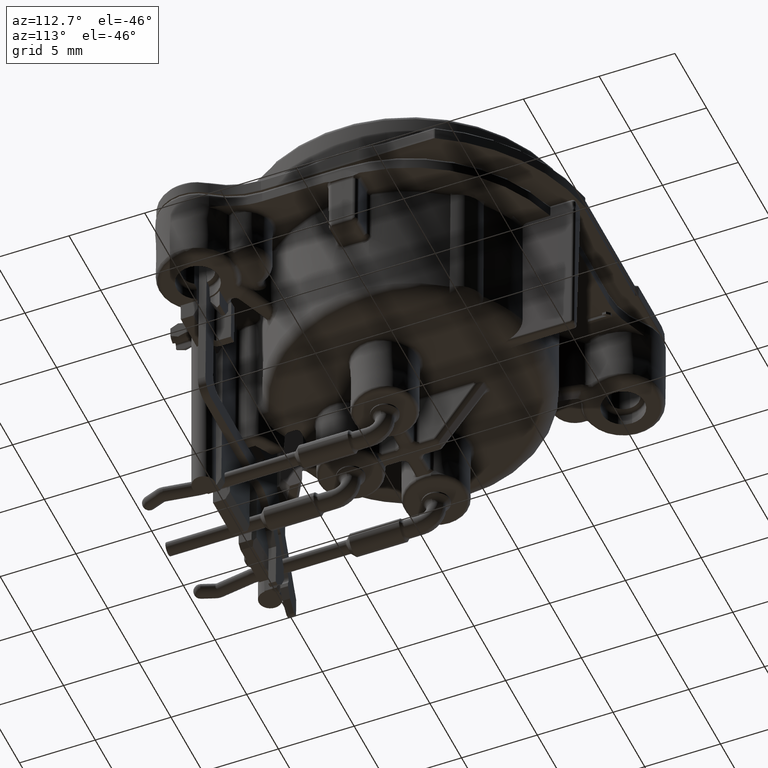
[diagram: clean part render]
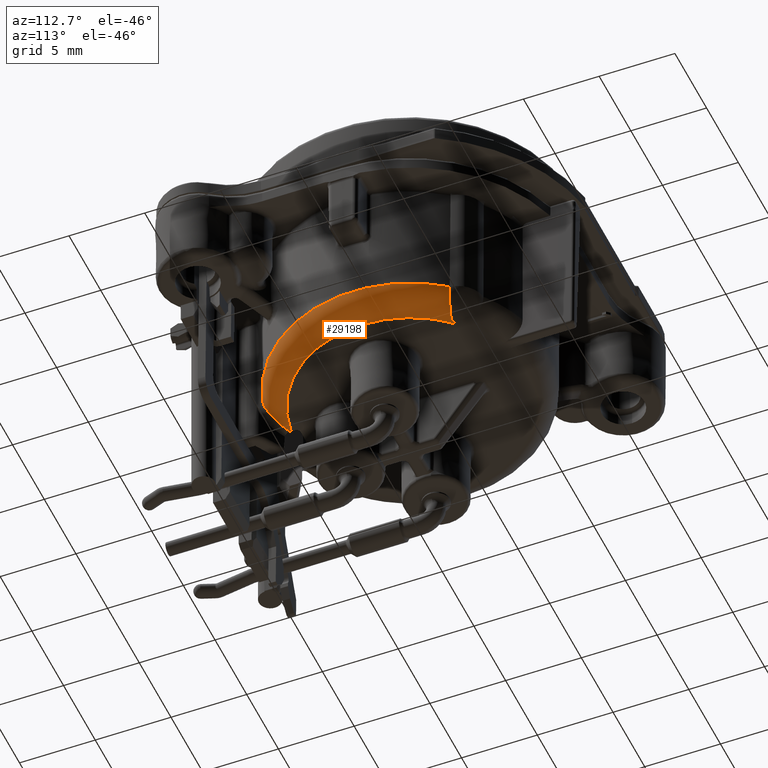
[diagram: same view with one face highlighted and labeled with its STEP entity id]
A machine part, auxiliary view. The second image highlights one B-rep face of the part: STEP entity #29198.
In plain terms, the highlighted toroidal blend (fillet) surface has major radius 7.556 mm and minor (blend) radius 1.5 mm.
Its self-contained STEP definition (entity closure, byte-faithful):
#3745=CARTESIAN_POINT('',(7.141501285638E0,5.56851162E0,-9.218143833828E0));
#4004=CARTESIAN_POINT('',(2.225007864127E0,-8.216354409264E0,
-1.035564866610E1));
#4005=CARTESIAN_POINT('',(2.254239938082E0,-8.230253539194E0,
-1.033822435038E1));
#4006=CARTESIAN_POINT('',(2.311023718709E0,-8.259779058835E0,
-1.030028483236E1));
#4007=CARTESIAN_POINT('',(2.391436029645E0,-8.309378040394E0,
-1.023155835560E1));
#4008=CARTESIAN_POINT('',(2.462830001995E0,-8.361031676076E0,
-1.015282662142E1));
#4009=CARTESIAN_POINT('',(2.523689137921E0,-8.411825482489E0,
-1.006628831984E1));
#4010=CARTESIAN_POINT('',(2.573681899545E0,-8.459218649820E0,
-9.974569012441E0));
#4011=CARTESIAN_POINT('',(2.613097166492E0,-8.500857926856E0,
-9.881966728002E0));
#4012=CARTESIAN_POINT('',(2.646025724382E0,-8.538992638613E0,
-9.783251589300E0));
#4013=CARTESIAN_POINT('',(2.674898691142E0,-8.575513856255E0,
-9.668339901003E0));
#4014=CARTESIAN_POINT('',(2.697991914346E0,-8.607252584105E0,
-9.536174550776E0));
#4015=CARTESIAN_POINT('',(2.713730074923E0,-8.630385523354E0,
-9.388118219134E0));
#4016=CARTESIAN_POINT('',(2.718386200191E0,-8.637529343235E0,
-9.276602931597E0));
#4017=CARTESIAN_POINT('',(2.718787907992E0,-8.638144655068E0,
-9.218136702171E0));
#4019=CARTESIAN_POINT('',(0.E0,0.E0,-9.218143833828E0));
#4020=DIRECTION('',(0.E0,0.E0,1.E0));
#4021=DIRECTION('',(3.002227761737E-1,-9.538691129639E-1,0.E0));
#4022=AXIS2_PLACEMENT_3D('',#4019,#4020,#4021);
#4024=CARTESIAN_POINT('',(7.141501285638E0,5.56851162E0,-9.218143833828E0));
#4025=CARTESIAN_POINT('',(7.140363829401E0,5.568130336944E0,-9.311677252098E0));
#4026=CARTESIAN_POINT('',(7.121437534759E0,5.560489438757E0,-9.492890903120E0));
#4027=CARTESIAN_POINT('',(7.051261413969E0,5.532073586292E0,-9.740982577055E0));
#4028=CARTESIAN_POINT('',(6.951075627711E0,5.492133194723E0,-9.954862100472E0));
#4029=CARTESIAN_POINT('',(6.829486726049E0,5.444902039040E0,-1.013596077637E1));
#4030=CARTESIAN_POINT('',(6.699753358048E0,5.396278685597E0,-1.027956180640E1));
#4031=CARTESIAN_POINT('',(6.571274377264E0,5.350216565990E0,-1.038995278199E1));
#4032=CARTESIAN_POINT('',(6.446710165318E0,5.307892040028E0,-1.047482997417E1));
#4033=CARTESIAN_POINT('',(6.326304100696E0,5.269577936695E0,-1.054036452966E1));
#4034=CARTESIAN_POINT('',(6.207104042662E0,5.234672033966E0,-1.059184473607E1));
#4035=CARTESIAN_POINT('',(6.087066482317E0,5.203354871644E0,-1.063185302861E1));
#4036=CARTESIAN_POINT('',(5.968928051255E0,5.177393684307E0,-1.066097071183E1));
#4037=CARTESIAN_POINT('',(5.854409164263E0,5.158735600602E0,-1.068052133470E1));
#4038=CARTESIAN_POINT('',(5.784289192648E0,5.153092281791E0,-1.068804264199E1));
#4039=CARTESIAN_POINT('',(5.750524781642E0,5.152944040210E0,-1.069084467006E1));
#4041=CARTESIAN_POINT('',(5.626298010358E0,5.227620195725E0,-9.197864033512E0));
#4042=DIRECTION('',(4.225793594926E-1,9.062688847885E-1,-1.016825427287E-2));
#4043=DIRECTION('',(8.281784752307E-2,-4.978410367612E-2,-9.953204243623E-1));
#4044=AXIS2_PLACEMENT_3D('',#4041,#4042,#4043);
#4046=CARTESIAN_POINT('',(5.629516305271E0,5.209297739808E0,-1.069705430440E1));
#4047=CARTESIAN_POINT('',(5.618992972037E0,5.215753023156E0,-1.069715590984E1));
#4048=CARTESIAN_POINT('',(5.598345616380E0,5.226786519987E0,-1.069835180484E1));
#4049=CARTESIAN_POINT('',(5.568737665464E0,5.237876185358E0,-1.069814276059E1));
#4050=CARTESIAN_POINT('',(5.542157899364E0,5.248088152275E0,-1.069843440803E1));
#4051=CARTESIAN_POINT('',(5.518856680158E0,5.258583653517E0,-1.069858310554E1));
#4052=CARTESIAN_POINT('',(5.505331667210E0,5.266296681126E0,-1.069871304763E1));
#4053=CARTESIAN_POINT('',(5.499016858093E0,5.270157429752E0,-1.069877385844E1));
#4055=CARTESIAN_POINT('',(5.499016858093E0,5.270157429752E0,-1.069877385844E1));
#4056=CARTESIAN_POINT('',(5.491938762223E0,5.274821005313E0,-1.069884612851E1));
#4057=CARTESIAN_POINT('',(5.478372468880E0,5.283710557545E0,-1.069898404386E1));
#4058=CARTESIAN_POINT('',(5.459846547524E0,5.295582864630E0,-1.069916766332E1));
#4059=CARTESIAN_POINT('',(5.442696747610E0,5.305847798673E0,-1.069932823845E1));
#4060=CARTESIAN_POINT('',(5.426874346233E0,5.314887178146E0,-1.069947038492E1));
#4061=CARTESIAN_POINT('',(5.412187680712E0,5.322722972161E0,-1.069959500609E1));
#4062=CARTESIAN_POINT('',(5.398516285072E0,5.329447965262E0,-1.069970363837E1));
#4063=CARTESIAN_POINT('',(5.385732687011E0,5.335119044134E0,-1.069979737423E1));
#4064=CARTESIAN_POINT('',(5.373769773101E0,5.339616328439E0,-1.069987550667E1));
#4065=CARTESIAN_POINT('',(5.362521276204E0,5.343065586639E0,-1.069993974453E1));
#4066=CARTESIAN_POINT('',(5.352128610578E0,5.344776574196E0,-1.069998373385E1));
#4067=CARTESIAN_POINT('',(5.345788148264E0,5.343804038410E0,-1.069999626345E1));
#4068=CARTESIAN_POINT('',(5.342908456937E0,5.342906185509E0,-1.07E1));
#4070=CARTESIAN_POINT('',(0.E0,0.E0,-1.07E1));
#4071=DIRECTION('',(0.E0,0.E0,-1.E0));
#4072=DIRECTION('',(7.071069632781E-1,7.071065990950E-1,0.E0));
#4073=AXIS2_PLACEMENT_3D('',#4070,#4071,#4072);
#4075=CARTESIAN_POINT('',(8.751326796778E-1,-7.579124655686E0,
-1.069820139797E1));
#4076=CARTESIAN_POINT('',(8.751483699219E-1,-7.566822954941E0,
-1.069880058422E1));
#4077=CARTESIAN_POINT('',(8.751718969832E-1,-7.542193826060E0,
-1.069969799495E1));
#4078=CARTESIAN_POINT('',(8.751797960856E-1,-7.517511034005E0,-1.07E1));
#4079=CARTESIAN_POINT('',(8.751797960856E-1,-7.505156542578E0,-1.07E1));
#4081=CARTESIAN_POINT('',(8.751326796778E-1,-7.579124655686E0,
-1.069820139797E1));
#4082=CARTESIAN_POINT('',(1.016397294843E0,-7.645607940371E0,
-1.069417190919E1));
#4083=CARTESIAN_POINT('',(1.286518947160E0,-7.772662745410E0,
-1.067239915970E1));
#4084=CARTESIAN_POINT('',(1.646966831029E0,-7.942508034886E0,
-1.060106027329E1));
#4085=CARTESIAN_POINT('',(1.962455718793E0,-8.091656929079E0,
-1.049520333610E1));
#4086=CARTESIAN_POINT('',(2.142892260547E0,-8.177310110930E0,
-1.040459472947E1));
#4087=CARTESIAN_POINT('',(2.225007864127E0,-8.216354409264E0,
-1.035564866610E1));
#4141=CARTESIAN_POINT('',(5.342908456937E0,5.342906185509E0,-1.07E1));
#20781=VERTEX_POINT('',#3745);
#20784=CARTESIAN_POINT('',(5.750524781642E0,5.152944040210E0,
-1.069084467006E1));
#20785=CARTESIAN_POINT('',(5.629491074218E0,5.209302748531E0,
-1.069774878758E1));
#20786=VERTEX_POINT('',#20784);
#20787=VERTEX_POINT('',#20785);
#20792=VERTEX_POINT('',#4053);
#20793=VERTEX_POINT('',#4141);
#21342=CARTESIAN_POINT('',(8.751797960856E-1,-7.505156542578E0,-1.07E1));
#21343=VERTEX_POINT('',#21342);
#21362=VERTEX_POINT('',#4004);
#21363=VERTEX_POINT('',#4017);
#21367=VERTEX_POINT('',#4081);
#29176=CARTESIAN_POINT('',(0.E0,0.E0,-9.2E0));
#29177=DIRECTION('',(0.E0,0.E0,-1.E0));
#29178=DIRECTION('',(0.E0,-1.E0,0.E0));
#29179=AXIS2_PLACEMENT_3D('',#29176,#29177,#29178);
#29180=TOROIDAL_SURFACE('',#29179,7.556011805448E0,1.5E0);
#29182=ORIENTED_EDGE('',*,*,#29181,.T.);
#29183=ORIENTED_EDGE('',*,*,#29044,.T.);
#29184=ORIENTED_EDGE('',*,*,#29171,.T.);
#29185=ORIENTED_EDGE('',*,*,#29169,.T.);
#29187=ORIENTED_EDGE('',*,*,#29186,.T.);
#29189=ORIENTED_EDGE('',*,*,#29188,.T.);
#29191=ORIENTED_EDGE('',*,*,#29190,.T.);
#29193=ORIENTED_EDGE('',*,*,#29192,.F.);
#29195=ORIENTED_EDGE('',*,*,#29194,.T.);
#29196=EDGE_LOOP('',(#29182,#29183,#29184,#29185,#29187,#29189,#29191,#29193,
#29195));
#29197=FACE_OUTER_BOUND('',#29196,.F.);
#29198=ADVANCED_FACE('',(#29197),#29180,.T.);
#4018=B_SPLINE_CURVE_WITH_KNOTS('',3,(#4004,#4005,#4006,#4007,#4008,#4009,#4010,
#4011,#4012,#4013,#4014,#4015,#4016,#4017),.UNSPECIFIED.,.F.,.F.,(4,1,1,1,1,1,1,
1,1,1,1,4),(0.E0,9.090909090909E-2,1.818181818182E-1,2.727272727273E-1,
3.636363636364E-1,4.545454545455E-1,5.454545454545E-1,6.363636363636E-1,
7.272727272727E-1,8.181818181818E-1,9.090909090909E-1,1.E0),.UNSPECIFIED.);
#4023=CIRCLE('',#4022,9.055902068532E0);
#4040=B_SPLINE_CURVE_WITH_KNOTS('',3,(#4024,#4025,#4026,#4027,#4028,#4029,#4030,
#4031,#4032,#4033,#4034,#4035,#4036,#4037,#4038,#4039),.UNSPECIFIED.,.F.,.F.,(4,
1,1,1,1,1,1,1,1,1,1,1,1,4),(0.E0,7.692307692308E-2,1.538461538462E-1,
2.307692307692E-1,3.076923076923E-1,3.846153846154E-1,4.615384615385E-1,
5.384615384615E-1,6.153846153846E-1,6.923076923077E-1,7.692307692308E-1,
8.461538461538E-1,9.230769230769E-1,1.E0),.UNSPECIFIED.);
#4045=CIRCLE('',#4044,1.5E0);
#4054=B_SPLINE_CURVE_WITH_KNOTS('',3,(#4046,#4047,#4048,#4049,#4050,#4051,#4052,
#4053),.UNSPECIFIED.,.F.,.F.,(4,1,1,1,1,4),(0.E0,2.E-1,4.E-1,6.E-1,8.E-1,1.E0),
.UNSPECIFIED.);
#4069=B_SPLINE_CURVE_WITH_KNOTS('',3,(#4055,#4056,#4057,#4058,#4059,#4060,#4061,
#4062,#4063,#4064,#4065,#4066,#4067,#4068),.UNSPECIFIED.,.F.,.F.,(4,1,1,1,1,1,1,
1,1,1,1,4),(0.E0,9.090909090909E-2,1.818181818182E-1,2.727272727273E-1,
3.636363636364E-1,4.545454545455E-1,5.454545454545E-1,6.363636363636E-1,
7.272727272727E-1,8.181818181818E-1,9.090909090909E-1,1.E0),.UNSPECIFIED.);
#4074=CIRCLE('',#4073,7.556011805448E0);
#4080=B_SPLINE_CURVE_WITH_KNOTS('',3,(#4075,#4076,#4077,#4078,#4079),
.UNSPECIFIED.,.F.,.F.,(4,1,4),(0.E0,5.E-1,1.E0),.UNSPECIFIED.);
#4088=B_SPLINE_CURVE_WITH_KNOTS('',3,(#4081,#4082,#4083,#4084,#4085,#4086,
#4087),.UNSPECIFIED.,.F.,.F.,(4,1,1,1,4),(0.E0,2.5E-1,5.E-1,7.5E-1,1.E0),
.UNSPECIFIED.);
#29044=EDGE_CURVE('',#21363,#20781,#4023,.T.);
#29169=EDGE_CURVE('',#20786,#20787,#4045,.T.);
#29171=EDGE_CURVE('',#20781,#20786,#4040,.T.);
#29181=EDGE_CURVE('',#21362,#21363,#4018,.T.);
#29186=EDGE_CURVE('',#20787,#20792,#4054,.T.);
#29188=EDGE_CURVE('',#20792,#20793,#4069,.T.);
#29190=EDGE_CURVE('',#20793,#21343,#4074,.T.);
#29192=EDGE_CURVE('',#21367,#21343,#4080,.T.);
#29194=EDGE_CURVE('',#21367,#21362,#4088,.T.);